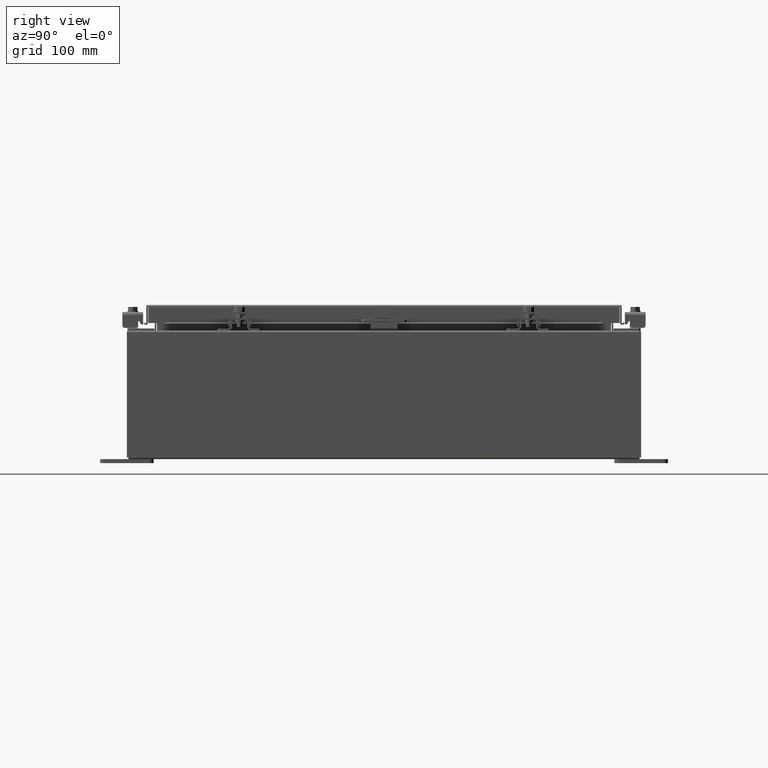
[diagram: clean part render]
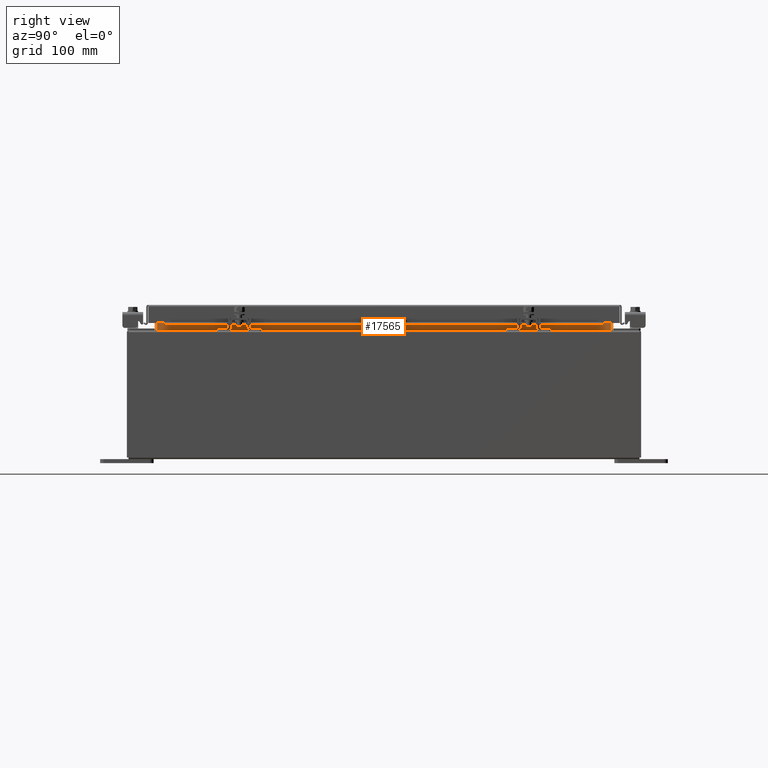
[diagram: same view with one face highlighted and labeled with its STEP entity id]
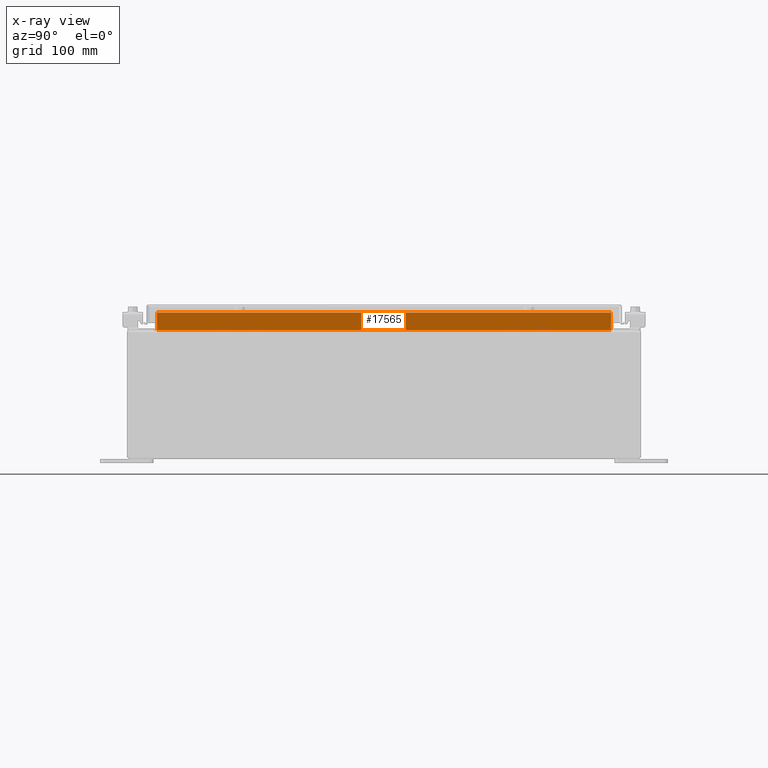
[diagram: x-ray of the same camera — body ghosted, the highlighted face saturated]
A machine part, right view. The second image highlights one B-rep face of the part: STEP entity #17565.
The next image is the same camera in x-ray: the body ghosted, the highlighted face saturated — about 0% of this face is hidden behind the body in this view.
In plain terms, the highlighted planar face has unit normal (1, 0, -0).
Its self-contained STEP definition (entity closure, byte-faithful):
#314 = CARTESIAN_POINT ( 'NONE',  ( 8.699700000000019500, -10.59374999999999800, 5.938300000000012300 ) ) ;
#545 = DIRECTION ( 'NONE',  ( 0.0000000000000000000, 1.000000000000000000, 0.0000000000000000000 ) ) ;
#1238 = VECTOR ( 'NONE', #545, 39.37007874015748100 ) ;
#1709 = EDGE_CURVE ( 'NONE', #11406, #24074, #14575, .T. ) ;
#3442 = ORIENTED_EDGE ( 'NONE', *, *, #30499, .F. ) ;
#5124 = ORIENTED_EDGE ( 'NONE', *, *, #1709, .F. ) ;
#5193 = DIRECTION ( 'NONE',  ( 1.000000000000000000, 0.0000000000000000000, -3.542869979895294000E-015 ) ) ;
#5388 = VECTOR ( 'NONE', #10496, 39.37007874015748100 ) ;
#6629 = CARTESIAN_POINT ( 'NONE',  ( 8.699700000000023100, -10.59375000000000000, 6.850600000000010700 ) ) ;
#7353 = LINE ( 'NONE', #6629, #32438 ) ;
#8716 = CARTESIAN_POINT ( 'NONE',  ( 8.699700000000021300, 10.59374999999999600, 5.938300000000010600 ) ) ;
#8822 = DIRECTION ( 'NONE',  ( 5.157471138481205900E-017, -1.000000000000000000, 1.547241341544361900E-016 ) ) ;
#9205 = LINE ( 'NONE', #8716, #28438 ) ;
#10496 = DIRECTION ( 'NONE',  ( -3.542869979895294000E-015, -0.0000000000000000000, -1.000000000000000000 ) ) ;
#11406 = VERTEX_POINT ( 'NONE', #27437 ) ;
#12528 = PLANE ( 'NONE',  #19829 ) ;
#13013 = EDGE_CURVE ( 'NONE', #28712, #11406, #7353, .T. ) ;
#14575 = LINE ( 'NONE', #23015, #1238 ) ;
#15343 = CARTESIAN_POINT ( 'NONE',  ( 8.699700000000021300, 10.59374999999999600, 6.762900000000009900 ) ) ;
#17142 = EDGE_LOOP ( 'NONE', ( #3442, #5124, #30024, #17267 ) ) ;
#17267 = ORIENTED_EDGE ( 'NONE', *, *, #24871, .F. ) ;
#17565 = ADVANCED_FACE ( 'NONE', ( #18030 ), #12528, .T. ) ;
#18030 = FACE_OUTER_BOUND ( 'NONE', #17142, .T. ) ;
#18719 = LINE ( 'NONE', #22993, #5388 ) ;
#18741 = CARTESIAN_POINT ( 'NONE',  ( 8.699700000000019500, 10.59374999999999600, 5.938300000000012300 ) ) ;
#19829 = AXIS2_PLACEMENT_3D ( 'NONE', #22617, #5193, #22733 ) ;
#22617 = CARTESIAN_POINT ( 'NONE',  ( 8.699699999999998200, 0.0000000000000000000, -3.082190596409509000E-014 ) ) ;
#22733 = DIRECTION ( 'NONE',  ( -3.542869979895294000E-015, 0.0000000000000000000, -1.000000000000000000 ) ) ;
#22993 = CARTESIAN_POINT ( 'NONE',  ( 8.699700000000019500, 10.59374999999999600, 5.925300000000009800 ) ) ;
#23015 = CARTESIAN_POINT ( 'NONE',  ( 8.699700000000021300, -10.59375000000000000, 6.762900000000009900 ) ) ;
#24074 = VERTEX_POINT ( 'NONE', #15343 ) ;
#24186 = DIRECTION ( 'NONE',  ( 3.542869979895298400E-015, -0.0000000000000000000, 1.000000000000000000 ) ) ;
#24871 = EDGE_CURVE ( 'NONE', #30085, #28712, #9205, .T. ) ;
#27437 = CARTESIAN_POINT ( 'NONE',  ( 8.699700000000023100, -10.59375000000000000, 6.762900000000009900 ) ) ;
#28438 = VECTOR ( 'NONE', #8822, 39.37007874015748100 ) ;
#28712 = VERTEX_POINT ( 'NONE', #314 ) ;
#30024 = ORIENTED_EDGE ( 'NONE', *, *, #13013, .F. ) ;
#30085 = VERTEX_POINT ( 'NONE', #18741 ) ;
#30499 = EDGE_CURVE ( 'NONE', #24074, #30085, #18719, .T. ) ;
#32438 = VECTOR ( 'NONE', #24186, 39.37007874015748100 ) ;